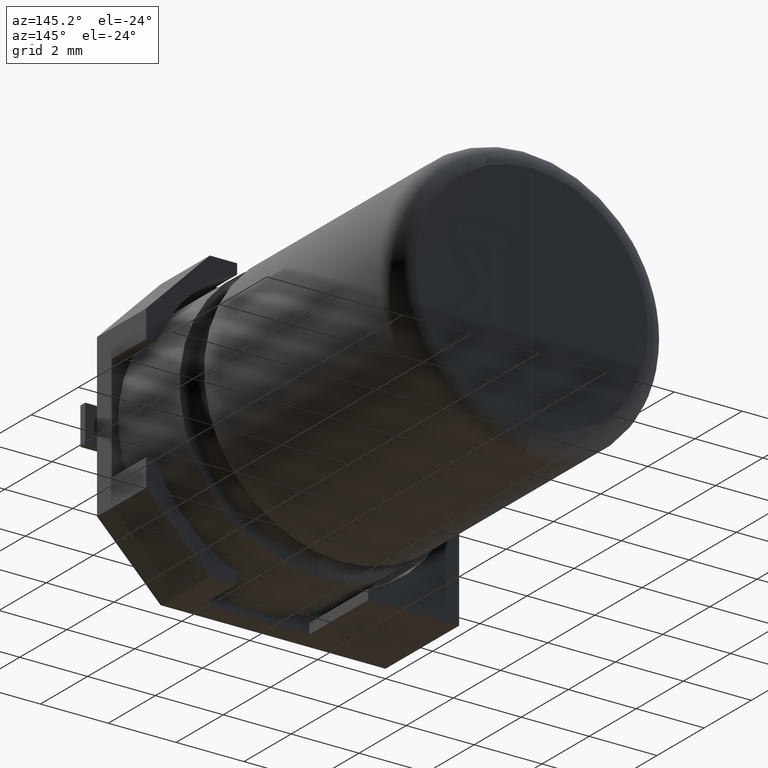
[diagram: clean part render]
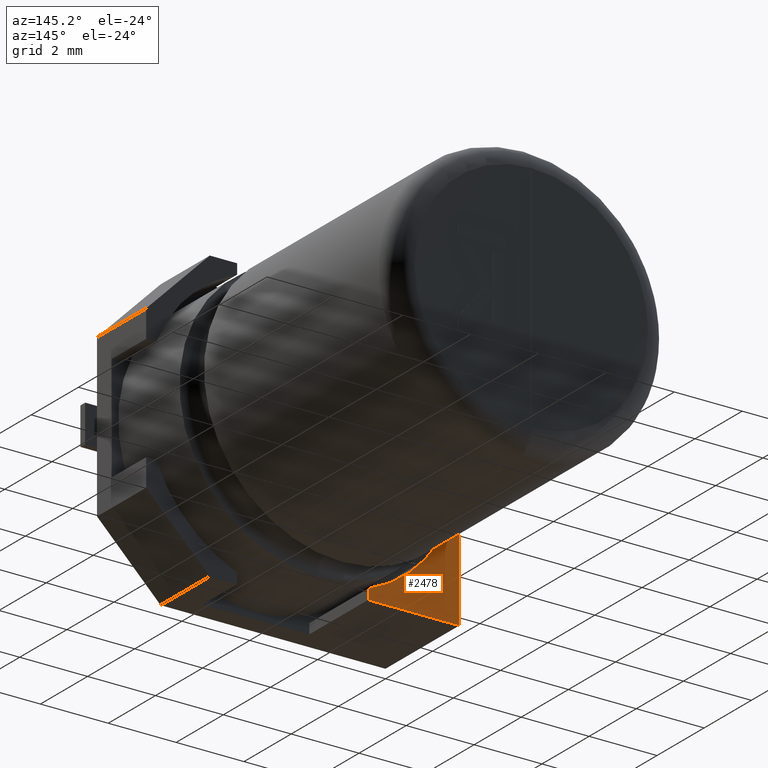
[diagram: same view with one face highlighted and labeled with its STEP entity id]
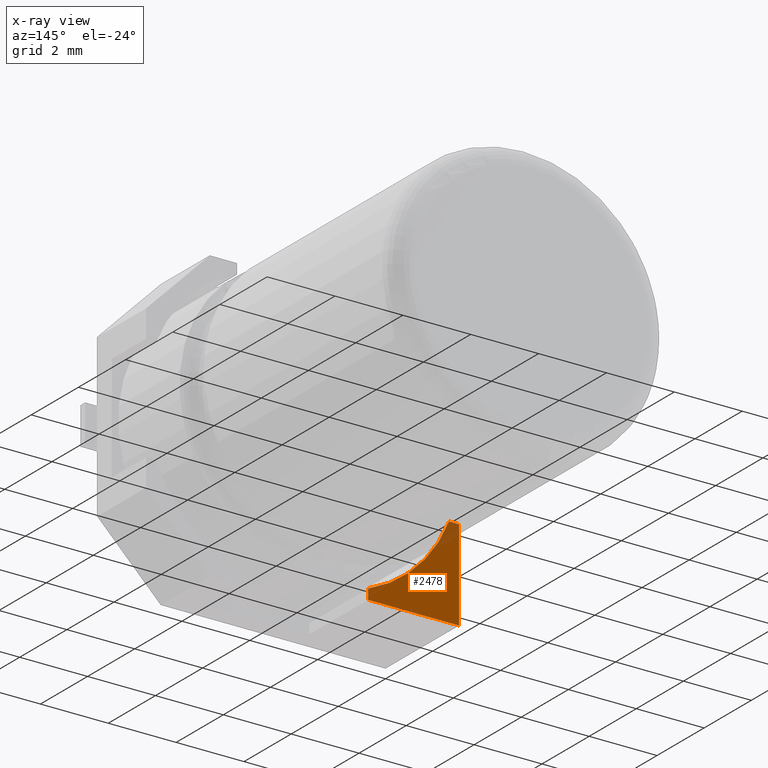
[diagram: x-ray of the same camera — body ghosted, the highlighted face saturated]
A machine part, auxiliary view. The second image highlights one B-rep face of the part: STEP entity #2478.
The next image is the same camera in x-ray: the body ghosted, the highlighted face saturated — about 6% of this face is hidden behind the body in this view.
In plain terms, the highlighted planar face has unit normal (-0, 1, 0).
Its self-contained STEP definition (entity closure, byte-faithful):
#183 = EDGE_CURVE ( 'NONE', #680, #2271, #3143, .T. ) ;
#246 = EDGE_CURVE ( 'NONE', #2271, #3245, #392, .T. ) ;
#295 = CARTESIAN_POINT ( 'NONE',  ( 0.2999999999999995448, 3.125000000000000000, -5.818438714135817591 ) ) ;
#329 = VERTEX_POINT ( 'NONE', #352 ) ;
#352 = CARTESIAN_POINT ( 'NONE',  ( 2.681561285864186406, 3.125000000000000000, -8.500000000000000000 ) ) ;
#392 = LINE ( 'NONE', #2416, #2169 ) ;
#410 = VECTOR ( 'NONE', #921, 1000.000000000000000 ) ;
#464 = EDGE_CURVE ( 'NONE', #924, #329, #2231, .T. ) ;
#526 = CARTESIAN_POINT ( 'NONE',  ( 0.000000000000000000, 3.125000000000000000, -5.818438714135817591 ) ) ;
#565 = LINE ( 'NONE', #2995, #2383 ) ;
#587 = DIRECTION ( 'NONE',  ( 0.000000000000000000, 0.000000000000000000, -1.000000000000000000 ) ) ;
#616 = CARTESIAN_POINT ( 'NONE',  ( 0.000000000000000000, 3.125000000000000000, -8.500000000000000000 ) ) ;
#680 = VERTEX_POINT ( 'NONE', #1709 ) ;
#728 = DIRECTION ( 'NONE',  ( -0.000000000000000000, 1.000000000000000000, 0.000000000000000000 ) ) ;
#921 = DIRECTION ( 'NONE',  ( 1.000000000000000000, 0.000000000000000000, 0.000000000000000000 ) ) ;
#924 = VERTEX_POINT ( 'NONE', #616 ) ;
#952 = ORIENTED_EDGE ( 'NONE', *, *, #183, .F. ) ;
#965 = ORIENTED_EDGE ( 'NONE', *, *, #2516, .T. ) ;
#980 = ORIENTED_EDGE ( 'NONE', *, *, #464, .F. ) ;
#1097 = DIRECTION ( 'NONE',  ( 0.000000000000000000, 0.000000000000000000, -1.000000000000000000 ) ) ;
#1399 = AXIS2_PLACEMENT_3D ( 'NONE', #2289, #728, #3375 ) ;
#1428 = DIRECTION ( 'NONE',  ( -1.000000000000000000, 0.000000000000000000, 0.000000000000000000 ) ) ;
#1654 = EDGE_LOOP ( 'NONE', ( #3205, #952, #965, #980, #1797 ) ) ;
#1709 = CARTESIAN_POINT ( 'NONE',  ( 2.681561285864186406, 3.125000000000000000, -8.200000000000001066 ) ) ;
#1741 = EDGE_CURVE ( 'NONE', #3245, #924, #1882, .T. ) ;
#1797 = ORIENTED_EDGE ( 'NONE', *, *, #1741, .F. ) ;
#1882 = LINE ( 'NONE', #2110, #3117 ) ;
#2110 = CARTESIAN_POINT ( 'NONE',  ( 0.000000000000000000, 3.125000000000000000, 0.000000000000000000 ) ) ;
#2169 = VECTOR ( 'NONE', #1428, 1000.000000000000000 ) ;
#2211 = CARTESIAN_POINT ( 'NONE',  ( 0.000000000000000000, 3.125000000000000000, -8.500000000000000000 ) ) ;
#2231 = LINE ( 'NONE', #2211, #410 ) ;
#2271 = VERTEX_POINT ( 'NONE', #295 ) ;
#2272 = PLANE ( 'NONE',  #1399 ) ;
#2289 = CARTESIAN_POINT ( 'NONE',  ( 0.000000000000000000, 3.125000000000000000, 0.000000000000000000 ) ) ;
#2383 = VECTOR ( 'NONE', #1097, 1000.000000000000000 ) ;
#2416 = CARTESIAN_POINT ( 'NONE',  ( 0.000000000000000000, 3.125000000000000000, -5.818438714135817591 ) ) ;
#2478 = ADVANCED_FACE ( 'NONE', ( #2817 ), #2272, .T. ) ;
#2516 = EDGE_CURVE ( 'NONE', #680, #329, #565, .T. ) ;
#2673 = DIRECTION ( 'NONE',  ( 0.000000000000000000, 0.000000000000000000, 1.000000000000000000 ) ) ;
#2737 = DIRECTION ( 'NONE',  ( 0.000000000000000000, 1.000000000000000000, -0.000000000000000000 ) ) ;
#2817 = FACE_OUTER_BOUND ( 'NONE', #1654, .T. ) ;
#2862 = AXIS2_PLACEMENT_3D ( 'NONE', #2932, #2737, #2673 ) ;
#2932 = CARTESIAN_POINT ( 'NONE',  ( 4.249999999999998224, 3.125000000000000000, -4.250000000000000000 ) ) ;
#2995 = CARTESIAN_POINT ( 'NONE',  ( 2.681561285864186406, 3.125000000000000000, 0.000000000000000000 ) ) ;
#3117 = VECTOR ( 'NONE', #587, 1000.000000000000000 ) ;
#3143 = CIRCLE ( 'NONE', #2862, 4.250000000000000000 ) ;
#3205 = ORIENTED_EDGE ( 'NONE', *, *, #246, .F. ) ;
#3245 = VERTEX_POINT ( 'NONE', #526 ) ;
#3375 = DIRECTION ( 'NONE',  ( 0.000000000000000000, -0.000000000000000000, 1.000000000000000000 ) ) ;